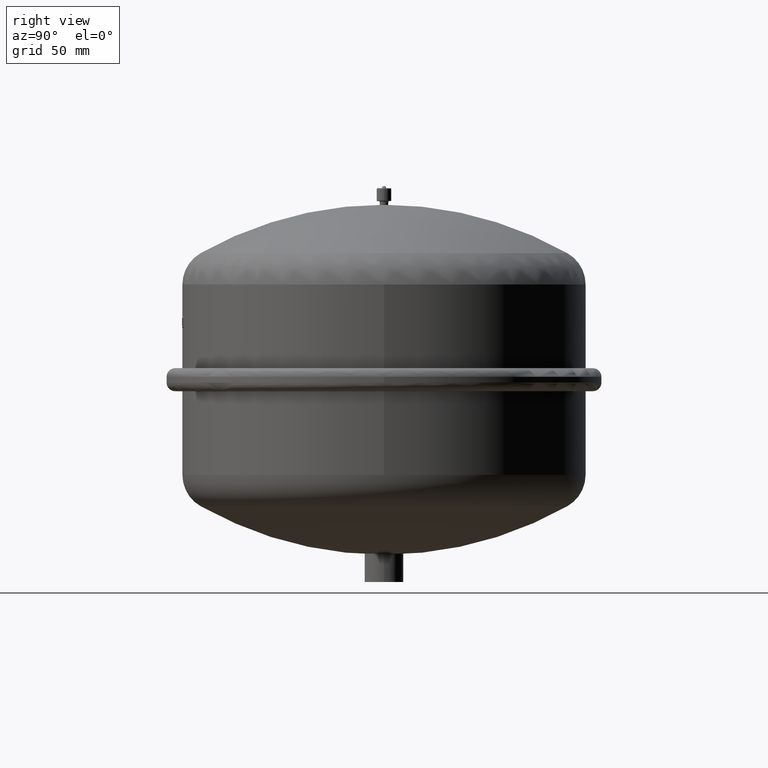
[diagram: clean part render]
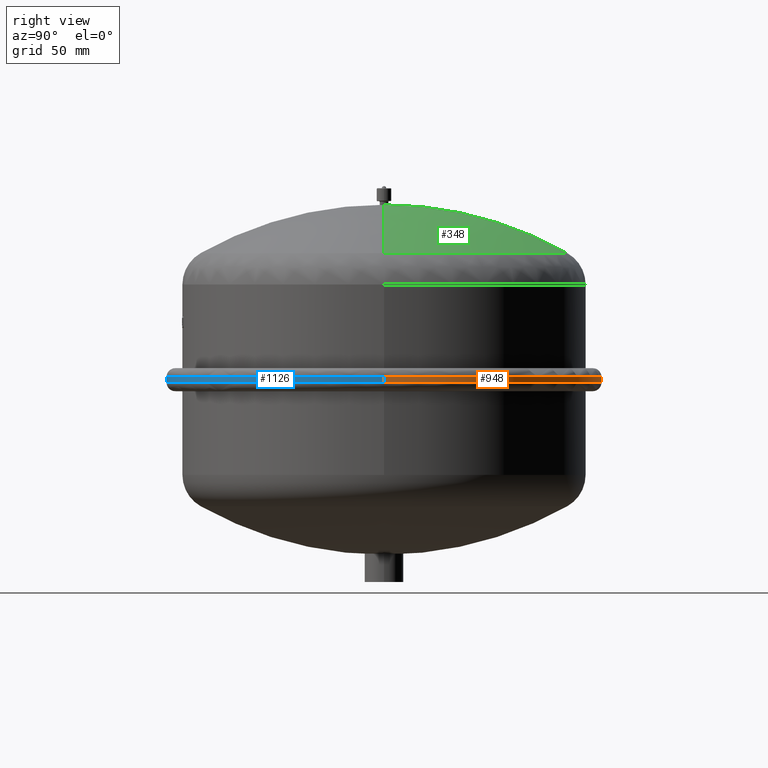
[diagram: same view with three faces highlighted in distinct colors, each labeled with its STEP entity id]
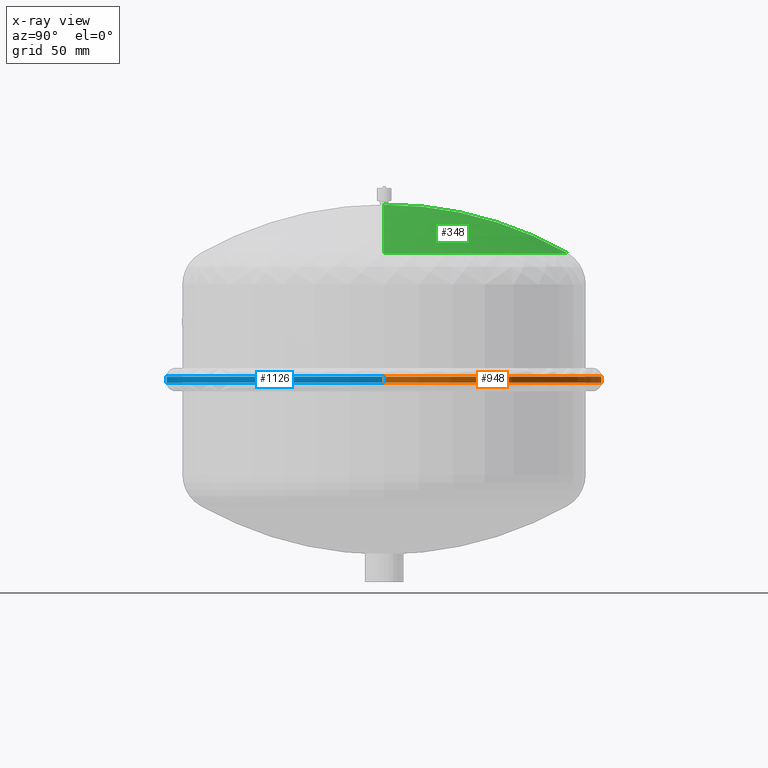
[diagram: x-ray of the same camera — body ghosted, the three highlighted faces saturated]
A machine part, right view with three faces highlighted in distinct colors.
The next image is the same camera in x-ray (body ghosted, the three faces saturated) — at least one of them is partly hidden behind the body in this view.
Their STEP definitions:

[orange] entity #948 — the highlighted cylindrical surface (partial cylindrical patch) has radius 151 mm, axis along (-0, 0, 1).
#871=CARTESIAN_POINT('',(-1.849156E-014,151.0,142.5));
#872=VERTEX_POINT('',#871);
#880=CARTESIAN_POINT('',(-151.0,4.440892E-016,142.5));
#881=VERTEX_POINT('',#880);
#882=CARTESIAN_POINT('',(-1.540744E-031,4.440892E-016,142.5));
#883=DIRECTION('',(0.0,0.0,1.0));
#884=DIRECTION('',(-1.0,0.0,0.0));
#885=AXIS2_PLACEMENT_3D('',#882,#883,#884);
#886=CIRCLE('',#885,151.0);
#887=EDGE_CURVE('',#872,#881,#886,.T.);
#899=CARTESIAN_POINT('',(-1.232595E-031,4.440892E-016,140.5));
#900=DIRECTION('',(-1.540744E-032,6.123032E-017,1.0));
#901=DIRECTION('',(-1.0,0.0,0.0));
#902=AXIS2_PLACEMENT_3D('',#899,#900,#901);
#903=CYLINDRICAL_SURFACE('',#902,151.0);
#904=CARTESIAN_POINT('',(-151.0,4.440892E-016,138.5));
#905=VERTEX_POINT('',#904);
#906=CARTESIAN_POINT('',(-151.0,5.665498E-016,142.5));
#907=DIRECTION('',(0.0,0.0,-1.0));
#908=VECTOR('',#907,4.0);
#909=LINE('',#906,#908);
#910=EDGE_CURVE('',#881,#905,#909,.T.);
#911=ORIENTED_EDGE('',*,*,#910,.F.);
#912=ORIENTED_EDGE('',*,*,#887,.F.);
#913=CARTESIAN_POINT('',(151.0,1.905811E-014,142.5));
#914=VERTEX_POINT('',#913);
#915=CARTESIAN_POINT('',(-1.540744E-031,4.440892E-016,142.5));
#916=DIRECTION('',(0.0,0.0,1.0));
#917=DIRECTION('',(-1.0,0.0,0.0));
#918=AXIS2_PLACEMENT_3D('',#915,#916,#917);
#919=CIRCLE('',#918,151.0);
#920=EDGE_CURVE('',#914,#872,#919,.T.);
#921=ORIENTED_EDGE('',*,*,#920,.F.);
#922=CARTESIAN_POINT('',(151.0,1.881318E-014,138.5));
#923=VERTEX_POINT('',#922);
#924=CARTESIAN_POINT('',(151.0,1.905811E-014,142.5));
#925=DIRECTION('',(0.0,0.0,-1.0));
#926=VECTOR('',#925,4.0);
#927=LINE('',#924,#926);
#928=EDGE_CURVE('',#914,#923,#927,.T.);
#929=ORIENTED_EDGE('',*,*,#928,.T.);
#930=CARTESIAN_POINT('',(-1.849156E-014,151.0,138.5));
#931=VERTEX_POINT('',#930);
#932=CARTESIAN_POINT('',(-9.244464E-032,4.440892E-016,138.5));
#933=DIRECTION('',(0.0,0.0,1.0));
#934=DIRECTION('',(-1.0,0.0,0.0));
#935=AXIS2_PLACEMENT_3D('',#932,#933,#934);
#936=CIRCLE('',#935,151.0);
#937=EDGE_CURVE('',#923,#931,#936,.T.);
#938=ORIENTED_EDGE('',*,*,#937,.T.);
#939=CARTESIAN_POINT('',(-9.244464E-032,4.440892E-016,138.5));
#940=DIRECTION('',(0.0,0.0,1.0));
#941=DIRECTION('',(-1.0,0.0,0.0));
#942=AXIS2_PLACEMENT_3D('',#939,#940,#941);
#943=CIRCLE('',#942,151.0);
#944=EDGE_CURVE('',#931,#905,#943,.T.);
#945=ORIENTED_EDGE('',*,*,#944,.T.);
#946=EDGE_LOOP('',(#911,#912,#921,#929,#938,#945));
#947=FACE_OUTER_BOUND('',#946,.T.);
#948=ADVANCED_FACE('',(#947),#903,.T.);

[blue] entity #1126 — the highlighted cylindrical surface (partial cylindrical patch) has radius 151 mm, axis along (-0, 0, 1).
#844=CARTESIAN_POINT('',(-2.465190E-031,-151.0,142.5));
#845=VERTEX_POINT('',#844);
#880=CARTESIAN_POINT('',(-151.0,4.440892E-016,142.5));
#881=VERTEX_POINT('',#880);
#889=CARTESIAN_POINT('',(-1.540744E-031,4.440892E-016,142.5));
#890=DIRECTION('',(0.0,0.0,1.0));
#891=DIRECTION('',(-1.0,0.0,0.0));
#892=AXIS2_PLACEMENT_3D('',#889,#890,#891);
#893=CIRCLE('',#892,151.0);
#894=EDGE_CURVE('',#881,#845,#893,.T.);
#904=CARTESIAN_POINT('',(-151.0,4.440892E-016,138.5));
#905=VERTEX_POINT('',#904);
#906=CARTESIAN_POINT('',(-151.0,5.665498E-016,142.5));
#907=DIRECTION('',(0.0,0.0,-1.0));
#908=VECTOR('',#907,4.0);
#909=LINE('',#906,#908);
#910=EDGE_CURVE('',#881,#905,#909,.T.);
#913=CARTESIAN_POINT('',(151.0,1.905811E-014,142.5));
#914=VERTEX_POINT('',#913);
#922=CARTESIAN_POINT('',(151.0,1.881318E-014,138.5));
#923=VERTEX_POINT('',#922);
#924=CARTESIAN_POINT('',(151.0,1.905811E-014,142.5));
#925=DIRECTION('',(0.0,0.0,-1.0));
#926=VECTOR('',#925,4.0);
#927=LINE('',#924,#926);
#928=EDGE_CURVE('',#914,#923,#927,.T.);
#954=CARTESIAN_POINT('',(-2.465190E-031,-151.0,138.5));
#955=VERTEX_POINT('',#954);
#965=CARTESIAN_POINT('',(-9.244464E-032,4.440892E-016,138.5));
#966=DIRECTION('',(0.0,0.0,1.0));
#967=DIRECTION('',(-1.0,0.0,0.0));
#968=AXIS2_PLACEMENT_3D('',#965,#966,#967);
#969=CIRCLE('',#968,151.0);
#970=EDGE_CURVE('',#905,#955,#969,.T.);
#1097=CARTESIAN_POINT('',(-9.244464E-032,4.440892E-016,138.5));
#1098=DIRECTION('',(0.0,0.0,1.0));
#1099=DIRECTION('',(-1.0,0.0,0.0));
#1100=AXIS2_PLACEMENT_3D('',#1097,#1098,#1099);
#1101=CIRCLE('',#1100,151.0);
#1102=EDGE_CURVE('',#955,#923,#1101,.T.);
#1107=CARTESIAN_POINT('',(-1.232595E-031,4.440892E-016,140.5));
#1108=DIRECTION('',(-1.540744E-032,6.123032E-017,1.0));
#1109=DIRECTION('',(-1.0,0.0,0.0));
#1110=AXIS2_PLACEMENT_3D('',#1107,#1108,#1109);
#1111=CYLINDRICAL_SURFACE('',#1110,151.0);
#1112=ORIENTED_EDGE('',*,*,#910,.T.);
#1113=ORIENTED_EDGE('',*,*,#970,.T.);
#1114=ORIENTED_EDGE('',*,*,#1102,.T.);
#1115=ORIENTED_EDGE('',*,*,#928,.F.);
#1116=CARTESIAN_POINT('',(-1.540744E-031,4.440892E-016,142.5));
#1117=DIRECTION('',(0.0,0.0,1.0));
#1118=DIRECTION('',(-1.0,0.0,0.0));
#1119=AXIS2_PLACEMENT_3D('',#1116,#1117,#1118);
#1120=CIRCLE('',#1119,151.0);
#1121=EDGE_CURVE('',#845,#914,#1120,.T.);
#1122=ORIENTED_EDGE('',*,*,#1121,.F.);
#1123=ORIENTED_EDGE('',*,*,#894,.F.);
#1124=EDGE_LOOP('',(#1112,#1113,#1114,#1115,#1122,#1123));
#1125=FACE_OUTER_BOUND('',#1124,.T.);
#1126=ADVANCED_FACE('',(#1125),#1111,.T.);

[green] entity #348 — the highlighted spherical surface has radius 258 mm.
#269=CARTESIAN_POINT('',(-1.223841E-014,127.33905579399143,228.38530448648979));
#270=VERTEX_POINT('',#269);
#278=CARTESIAN_POINT('',(127.33905579399143,-3.710680E-014,228.38530448648984));
#279=VERTEX_POINT('',#278);
#280=CARTESIAN_POINT('',(-4.148636E-015,4.112114E-015,228.38530448648982));
#281=DIRECTION('',(0.0,0.0,1.0));
#282=DIRECTION('',(-1.0,0.0,0.0));
#283=AXIS2_PLACEMENT_3D('',#280,#281,#282);
#284=CIRCLE('',#283,127.33905579399143);
#285=EDGE_CURVE('',#279,#270,#284,.T.);
#302=CARTESIAN_POINT('',(-6.527315E-014,-3.710680E-014,262.0));
#303=VERTEX_POINT('',#302);
#304=CARTESIAN_POINT('',(-4.947573E-014,-3.710680E-014,3.999999999999943));
#305=DIRECTION('',(0.0,1.0,0.0));
#306=DIRECTION('',(1.0,0.0,0.0));
#307=AXIS2_PLACEMENT_3D('',#304,#305,#306);
#308=CIRCLE('',#307,258.00000000000006);
#309=EDGE_CURVE('',#303,#279,#308,.T.);
#311=CARTESIAN_POINT('',(-127.33905579399145,4.112114E-015,228.38530448648982));
#312=VERTEX_POINT('',#311);
#313=CARTESIAN_POINT('',(-4.947573E-014,-3.710680E-014,3.999999999999943));
#314=DIRECTION('',(0.0,-1.0,0.0));
#315=DIRECTION('',(-1.0,0.0,0.0));
#316=AXIS2_PLACEMENT_3D('',#313,#314,#315);
#317=CIRCLE('',#316,258.00000000000006);
#318=EDGE_CURVE('',#303,#312,#317,.T.);
#331=CARTESIAN_POINT('',(-4.947573E-014,-3.710680E-014,3.999999999999943));
#332=DIRECTION('',(0.0,0.0,1.0));
#333=DIRECTION('',(1.0,0.0,0.0));
#334=AXIS2_PLACEMENT_3D('',#331,#332,#333);
#335=SPHERICAL_SURFACE('',#334,258.00000000000006);
#336=ORIENTED_EDGE('',*,*,#309,.T.);
#337=ORIENTED_EDGE('',*,*,#285,.T.);
#338=CARTESIAN_POINT('',(-4.148636E-015,4.112114E-015,228.38530448648982));
#339=DIRECTION('',(0.0,0.0,1.0));
#340=DIRECTION('',(-1.0,0.0,0.0));
#341=AXIS2_PLACEMENT_3D('',#338,#339,#340);
#342=CIRCLE('',#341,127.33905579399143);
#343=EDGE_CURVE('',#270,#312,#342,.T.);
#344=ORIENTED_EDGE('',*,*,#343,.T.);
#345=ORIENTED_EDGE('',*,*,#318,.F.);
#346=EDGE_LOOP('',(#336,#337,#344,#345));
#347=FACE_OUTER_BOUND('',#346,.T.);
#348=ADVANCED_FACE('',(#347),#335,.T.);